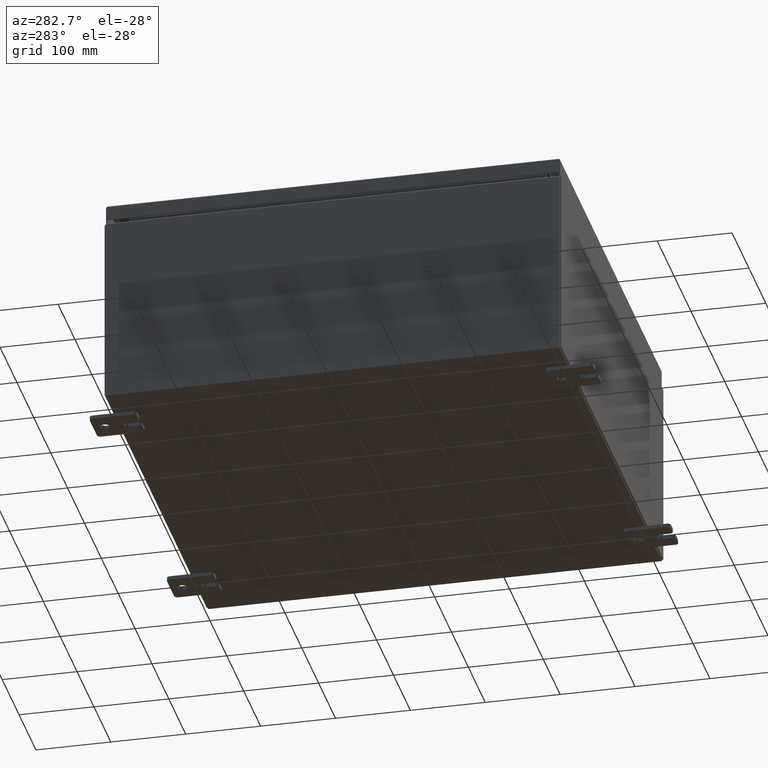
[diagram: clean part render]
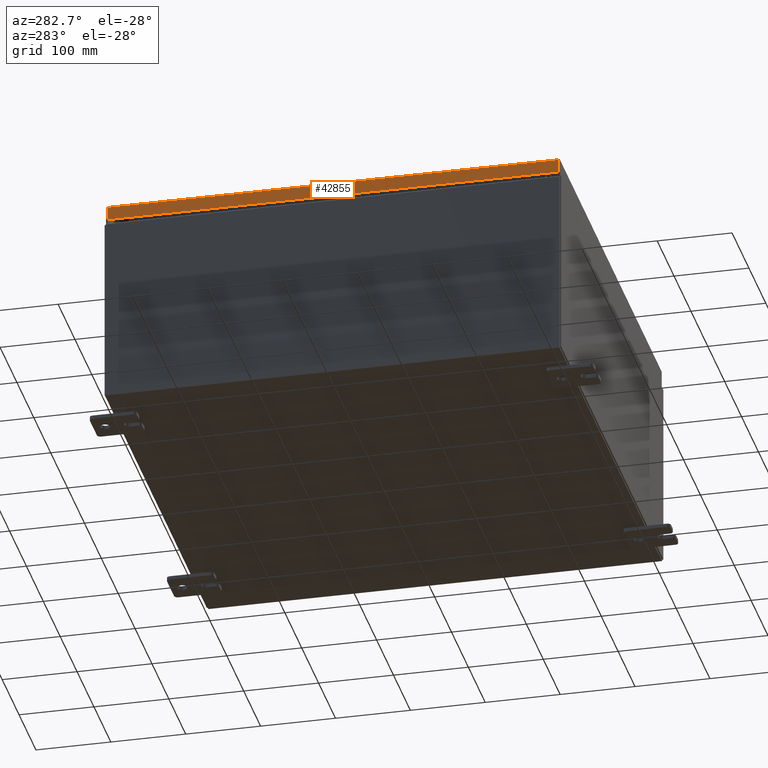
[diagram: same view with one face highlighted and labeled with its STEP entity id]
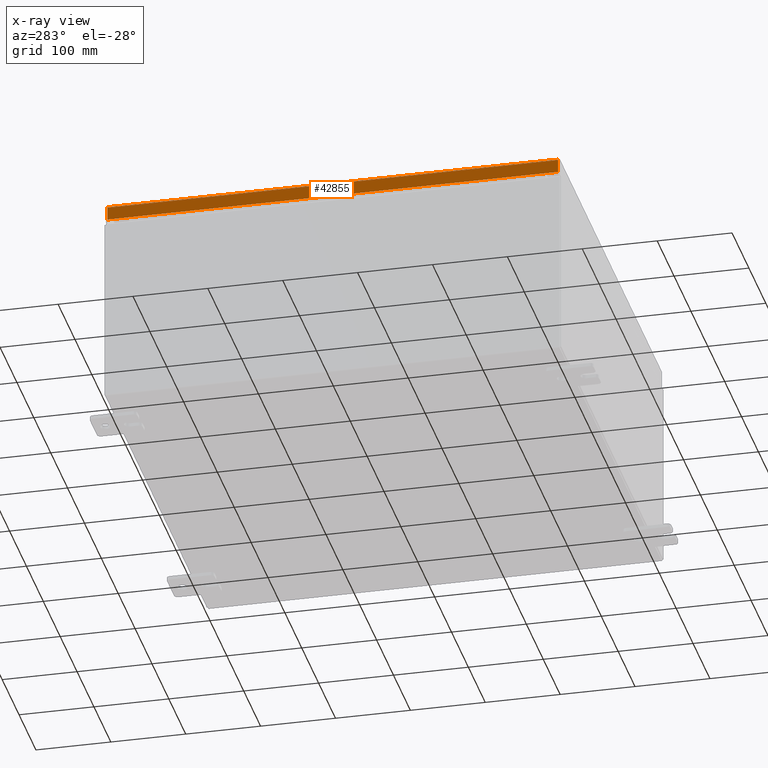
[diagram: x-ray of the same camera — body ghosted, the highlighted face saturated]
A machine part, auxiliary view. The second image highlights one B-rep face of the part: STEP entity #42855.
The next image is the same camera in x-ray: the body ghosted, the highlighted face saturated — about 0% of this face is hidden behind the body in this view.
In plain terms, the highlighted planar face has unit normal (1, 0, -0).
Its self-contained STEP definition (entity closure, byte-faithful):
#360 = ORIENTED_EDGE ( 'NONE', *, *, #33091, .F. ) ;
#5967 = CARTESIAN_POINT ( 'NONE',  ( -11.93749999999999800, 11.84865786437626800, 1.192193859543173000E-013 ) ) ;
#7484 = AXIS2_PLACEMENT_3D ( 'NONE', #36250, #12305, #46554 ) ;
#7900 = ORIENTED_EDGE ( 'NONE', *, *, #12121, .T. ) ;
#9421 = LINE ( 'NONE', #61872, #10948 ) ;
#10948 = VECTOR ( 'NONE', #32531, 39.37007874015748100 ) ;
#12121 = EDGE_CURVE ( 'NONE', #32746, #29293, #23347, .T. ) ;
#12305 = DIRECTION ( 'NONE',  ( 1.000000000000000000, 9.153836209136835400E-017, -3.034122441942816500E-015 ) ) ;
#12574 = CARTESIAN_POINT ( 'NONE',  ( -11.93749999999999800, -11.84865786437626800, -0.08769999999999897300 ) ) ;
#12607 = LINE ( 'NONE', #25970, #48602 ) ;
#19128 = EDGE_CURVE ( 'NONE', #54268, #29293, #9421, .T. ) ;
#19435 = ORIENTED_EDGE ( 'NONE', *, *, #21357, .F. ) ;
#21357 = EDGE_CURVE ( 'NONE', #57386, #54268, #42223, .T. ) ;
#21797 = VECTOR ( 'NONE', #40255, 39.37007874015748100 ) ;
#22268 = DIRECTION ( 'NONE',  ( 9.153836209136808200E-017, -1.000000000000000000, -9.153836209136826700E-017 ) ) ;
#23347 = LINE ( 'NONE', #5967, #21797 ) ;
#24112 = ORIENTED_EDGE ( 'NONE', *, *, #19128, .F. ) ;
#25970 = CARTESIAN_POINT ( 'NONE',  ( -11.93749999999999800, -11.93750000000000000, -0.08770000000000004200 ) ) ;
#29293 = VERTEX_POINT ( 'NONE', #46154 ) ;
#32531 = DIRECTION ( 'NONE',  ( -9.153836209136798400E-017, 1.000000000000000000, 1.201441002449204700E-016 ) ) ;
#32746 = VERTEX_POINT ( 'NONE', #53665 ) ;
#33091 = EDGE_CURVE ( 'NONE', #32746, #57386, #12607, .T. ) ;
#35614 = EDGE_LOOP ( 'NONE', ( #360, #7900, #24112, #19435 ) ) ;
#36250 = CARTESIAN_POINT ( 'NONE',  ( -11.93749999999999800, -1.092739197465709600E-015, 3.648065030670394700E-014 ) ) ;
#39421 = CARTESIAN_POINT ( 'NONE',  ( -11.93749999999999800, -11.84865786437626900, -0.07469999999999976700 ) ) ;
#40255 = DIRECTION ( 'NONE',  ( -3.034122441942817300E-015, 6.982962677686265900E-015, -1.000000000000000000 ) ) ;
#41555 = CARTESIAN_POINT ( 'NONE',  ( -11.93750000000000000, -11.84865786437626600, -0.7949999999999996000 ) ) ;
#41623 = PLANE ( 'NONE',  #7484 ) ;
#42223 = LINE ( 'NONE', #39421, #53748 ) ;
#42855 = ADVANCED_FACE ( 'NONE', ( #48729 ), #41623, .F. ) ;
#46154 = CARTESIAN_POINT ( 'NONE',  ( -11.93750000000000000, 11.84865786437627300, -0.7949999999999968200 ) ) ;
#46554 = DIRECTION ( 'NONE',  ( -3.034122441942816500E-015, 0.0000000000000000000, -1.000000000000000000 ) ) ;
#48602 = VECTOR ( 'NONE', #22268, 39.37007874015748100 ) ;
#48729 = FACE_OUTER_BOUND ( 'NONE', #35614, .T. ) ;
#53665 = CARTESIAN_POINT ( 'NONE',  ( -11.93750000000000000, 11.84865786437626800, -0.08769999999999786300 ) ) ;
#53748 = VECTOR ( 'NONE', #53890, 39.37007874015748100 ) ;
#53890 = DIRECTION ( 'NONE',  ( -3.034122441942817300E-015, 6.982962677686265900E-015, -1.000000000000000000 ) ) ;
#54268 = VERTEX_POINT ( 'NONE', #41555 ) ;
#57386 = VERTEX_POINT ( 'NONE', #12574 ) ;
#61872 = CARTESIAN_POINT ( 'NONE',  ( -11.93750000000000000, -11.93750000000000000, -0.7949999999999997100 ) ) ;